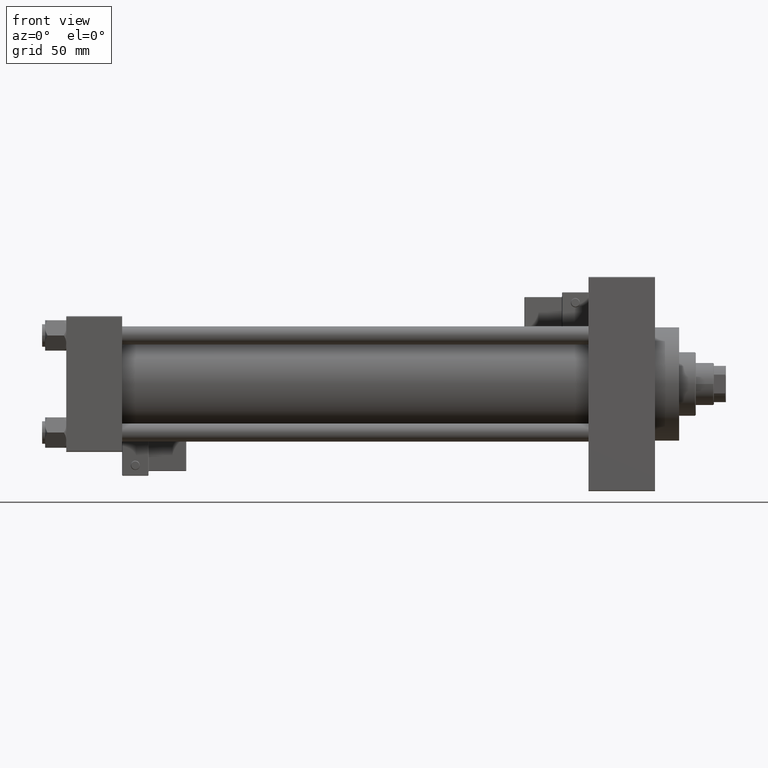
[diagram: clean part render]
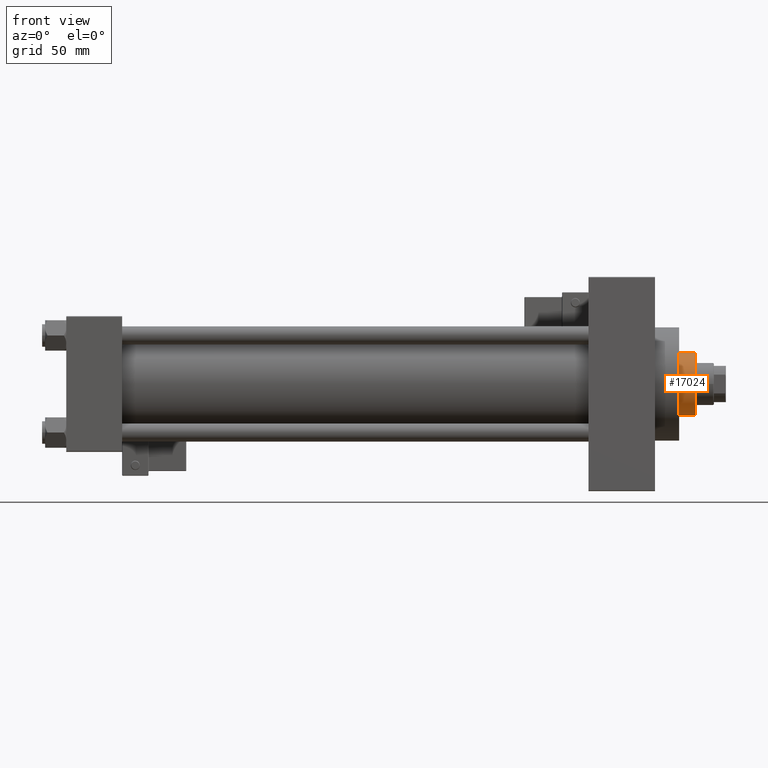
[diagram: same view with one face highlighted and labeled with its STEP entity id]
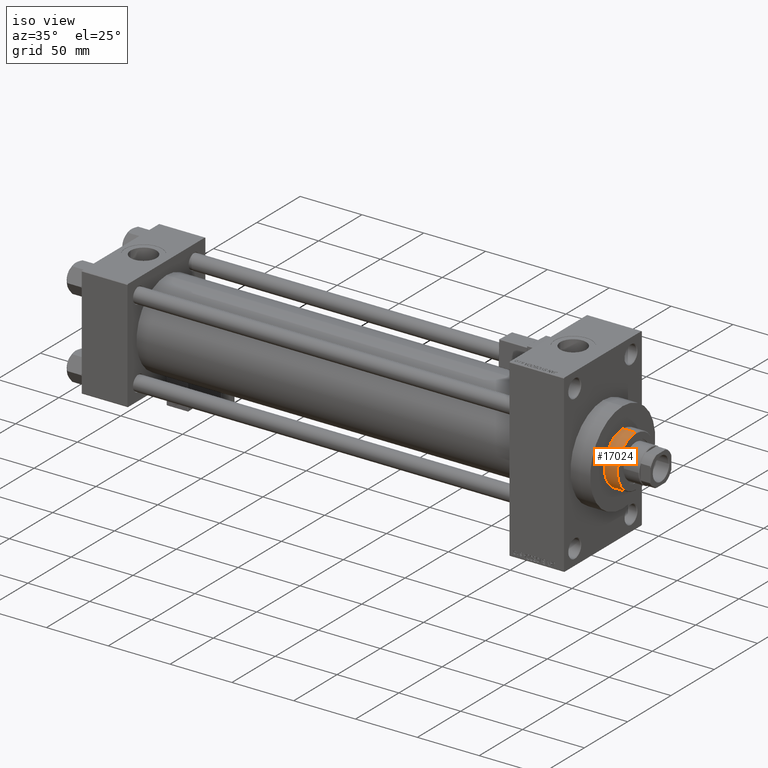
[diagram: same view with one face highlighted and labeled with its STEP entity id]
A machine part, front view. The second image highlights one B-rep face of the part: STEP entity #17024.
A second angle (iso view) of the same face is appended — the face is thin or edge-on in the first view.
In plain terms, the highlighted cylindrical surface (edge-blend (fillet) strip) has radius 21 mm, axis along (-1, 0, 0).
Its self-contained STEP definition (entity closure, byte-faithful):
#3319 = CIRCLE ( 'NONE', #26596, 21.00000000000000000 ) ;
#4053 = ORIENTED_EDGE ( 'NONE', *, *, #49339, .T. ) ;
#5409 = CARTESIAN_POINT ( 'NONE',  ( -21.00000000000000000, 0.000000000000000000, 43.25999999999999801 ) ) ;
#6003 = DIRECTION ( 'NONE',  ( -0.000000000000000000, -0.000000000000000000, -1.000000000000000000 ) ) ;
#8241 = VERTEX_POINT ( 'NONE', #42577 ) ;
#8580 = DIRECTION ( 'NONE',  ( -0.000000000000000000, -0.000000000000000000, -1.000000000000000000 ) ) ;
#8839 = LINE ( 'NONE', #9100, #24204 ) ;
#9100 = CARTESIAN_POINT ( 'NONE',  ( 21.00000000000000000, 2.571758278209441661E-15, 54.26000000000000512 ) ) ;
#10137 = EDGE_CURVE ( 'NONE', #8241, #12103, #21525, .T. ) ;
#12103 = VERTEX_POINT ( 'NONE', #5409 ) ;
#13071 = EDGE_CURVE ( 'NONE', #48740, #48368, #3319, .T. ) ;
#14305 = CARTESIAN_POINT ( 'NONE',  ( 0.000000000000000000, 0.000000000000000000, 43.25999999999999801 ) ) ;
#17024 = ADVANCED_FACE ( 'NONE', ( #48707 ), #41684, .T. ) ;
#18710 = CARTESIAN_POINT ( 'NONE',  ( -21.00000000000000000, 0.000000000000000000, 53.76000000000001933 ) ) ;
#19050 = DIRECTION ( 'NONE',  ( 0.000000000000000000, 0.000000000000000000, -1.000000000000000000 ) ) ;
#19986 = AXIS2_PLACEMENT_3D ( 'NONE', #20864, #6003, #49493 ) ;
#20864 = CARTESIAN_POINT ( 'NONE',  ( 0.000000000000000000, 0.000000000000000000, 54.26000000000000512 ) ) ;
#21525 = CIRCLE ( 'NONE', #45645, 21.00000000000000000 ) ;
#23138 = VECTOR ( 'NONE', #26481, 1000.000000000000000 ) ;
#24204 = VECTOR ( 'NONE', #8580, 1000.000000000000000 ) ;
#26481 = DIRECTION ( 'NONE',  ( -0.000000000000000000, -0.000000000000000000, -1.000000000000000000 ) ) ;
#26596 = AXIS2_PLACEMENT_3D ( 'NONE', #26855, #19050, #43510 ) ;
#26855 = CARTESIAN_POINT ( 'NONE',  ( 0.000000000000000000, 0.000000000000000000, 53.76000000000001933 ) ) ;
#30426 = DIRECTION ( 'NONE',  ( 1.000000000000000000, 0.000000000000000000, 0.000000000000000000 ) ) ;
#30902 = CARTESIAN_POINT ( 'NONE',  ( -21.00000000000000000, 0.000000000000000000, 54.26000000000000512 ) ) ;
#31676 = LINE ( 'NONE', #30902, #23138 ) ;
#32673 = ORIENTED_EDGE ( 'NONE', *, *, #39572, .F. ) ;
#34588 = DIRECTION ( 'NONE',  ( 0.000000000000000000, 0.000000000000000000, 1.000000000000000000 ) ) ;
#39222 = ORIENTED_EDGE ( 'NONE', *, *, #10137, .T. ) ;
#39572 = EDGE_CURVE ( 'NONE', #48740, #12103, #31676, .T. ) ;
#41684 = CYLINDRICAL_SURFACE ( 'NONE', #19986, 21.00000000000000000 ) ;
#42577 = CARTESIAN_POINT ( 'NONE',  ( 21.00000000000000000, 2.571758278209441661E-15, 43.25999999999999801 ) ) ;
#43220 = CARTESIAN_POINT ( 'NONE',  ( 21.00000000000000000, 2.571758278209441661E-15, 53.76000000000001933 ) ) ;
#43510 = DIRECTION ( 'NONE',  ( 1.000000000000000000, 0.000000000000000000, 0.000000000000000000 ) ) ;
#44251 = EDGE_LOOP ( 'NONE', ( #51368, #4053, #39222, #32673 ) ) ;
#45645 = AXIS2_PLACEMENT_3D ( 'NONE', #14305, #34588, #30426 ) ;
#48368 = VERTEX_POINT ( 'NONE', #43220 ) ;
#48707 = FACE_OUTER_BOUND ( 'NONE', #44251, .T. ) ;
#48740 = VERTEX_POINT ( 'NONE', #18710 ) ;
#49339 = EDGE_CURVE ( 'NONE', #48368, #8241, #8839, .T. ) ;
#49493 = DIRECTION ( 'NONE',  ( -1.000000000000000000, 0.000000000000000000, 0.000000000000000000 ) ) ;
#51368 = ORIENTED_EDGE ( 'NONE', *, *, #13071, .T. ) ;